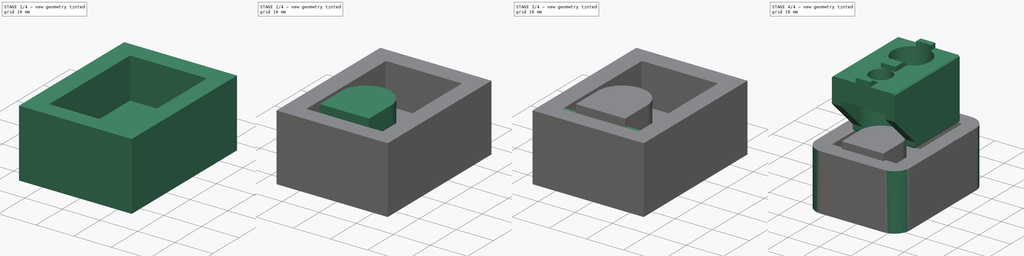
[diagram: build sequence overview — one tinted view per stage of 4, left to right]
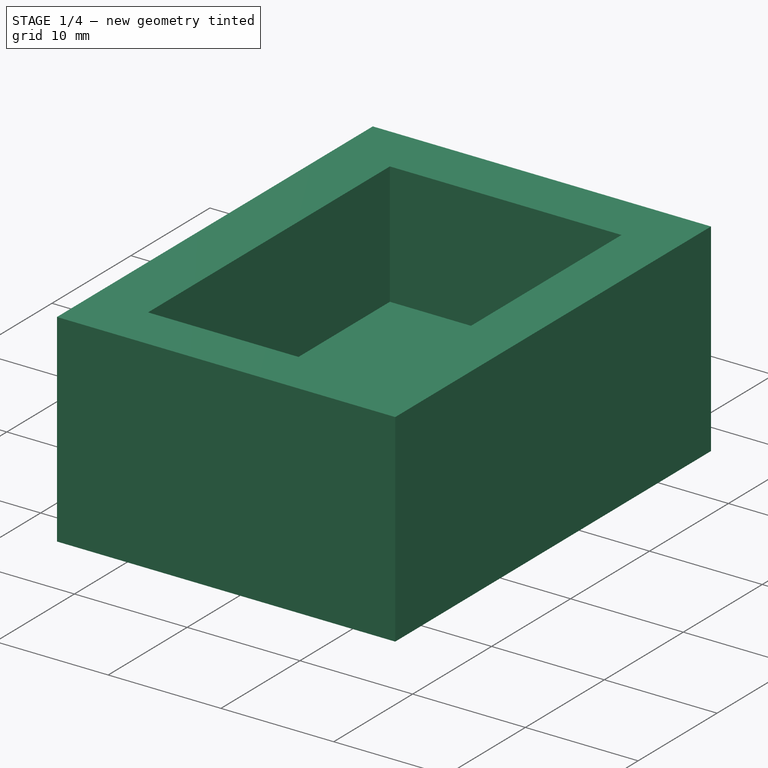
[diagram: stage 1 of 4 — iso view after this stage's code; geometry added in this stage tinted green]
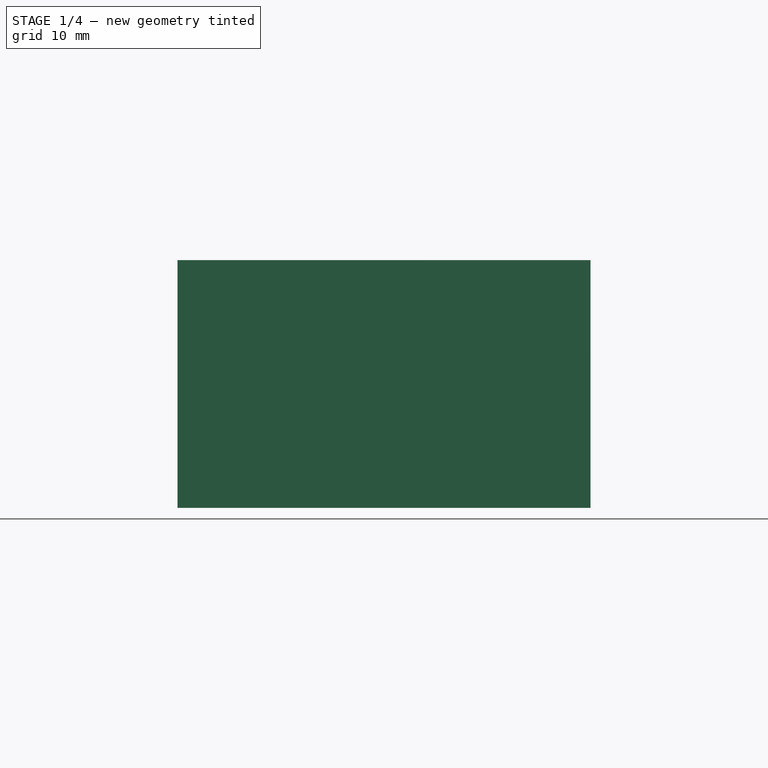
[diagram: stage 1 of 4 — front view after this stage's code; geometry added in this stage tinted green]
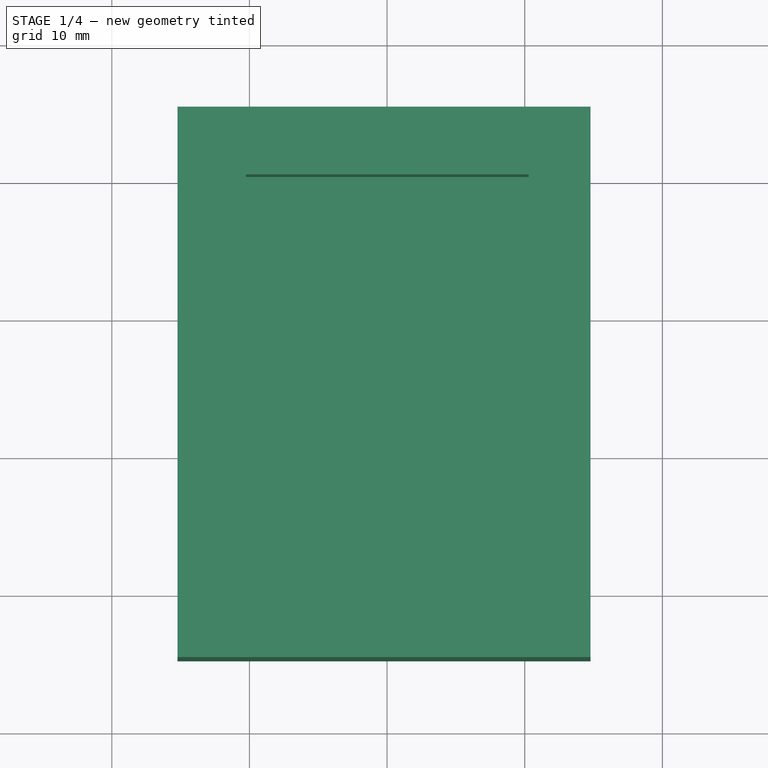
[diagram: stage 1 of 4 — top view after this stage's code; geometry added in this stage tinted green]
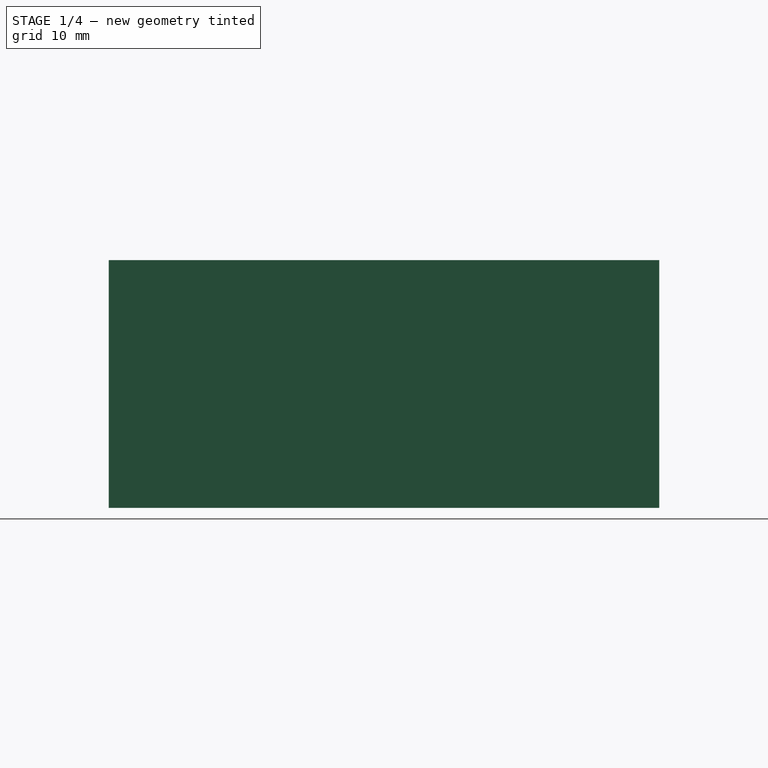
[diagram: stage 1 of 4 — right view after this stage's code; geometry added in this stage tinted green]
FCSTD DOCUMENT  (FreeCAD 0.17R9537 (Git))
Label: ymnt_chassis_insert
License: All rights reserved
LicenseURL: http://en.wikipedia.org/wiki/All_rights_reserved
objects: Sketcher::SketchObject×6, PartDesign::Pad×3, PartDesign::Pocket×3, PartDesign::Chamfer×2, Part::FeaturePython×1, PartDesign::Fillet×1, PartDesign::Body×1
note: 23 computed .brp shape members not serialized (recipe doc carries the construction recipe); baked Part::Feature solids carry a one-line shape summary decoded from their .brp

FEATURE [Sketcher::SketchObject] Sketch
  MapMode = 5
  Support = -> [XY_Plane]
  sketch-geometry (4):
    g0: LineSegment StartX=-5.2238 StartY=-34.7433 StartZ=0 EndX=24.7762 EndY=-34.7433 EndZ=0
    g1: LineSegment StartX=24.7762 StartY=-34.7433 StartZ=0 EndX=24.7762 EndY=5.25668 EndZ=0
    g2: LineSegment StartX=24.7762 StartY=5.25668 StartZ=0 EndX=-5.2238 EndY=5.25668 EndZ=0
    g3: LineSegment StartX=-5.2238 StartY=5.25668 StartZ=0 EndX=-5.2238 EndY=-34.7433 EndZ=0
  constraints (10):
    c: Coincident(g0,g1)
    c: Coincident(g1,g2)
    c: Coincident(g2,g3)
    c: Coincident(g3,g0)
    c: Horizontal(g0)
    c: Horizontal(g2)
    c: Vertical(g1)
    c: Vertical(g3)
    c: Distance(g2) = 30
    c: Distance(g3) = 40
FEATURE [PartDesign::Pad] Pad
  Length = 18
  Length2 = 100
  Profile = -> Sketch
  Type = 0
FEATURE [Sketcher::SketchObject] Sketch001
  MapMode = 5
  Placement = pos=(0,0,18) rot=(0,0,1;0rad)
  Support = -> [Pad]
  sketch-geometry (4):
    g0: LineSegment StartX=-0.25852 StartY=0.329742 StartZ=0 EndX=20.2855 EndY=0.329742 EndZ=0
    g1: LineSegment StartX=20.2855 StartY=0.329742 StartZ=0 EndX=20.2855 EndY=-30.3009 EndZ=0
    g2: LineSegment StartX=20.2855 StartY=-30.3009 StartZ=0 EndX=-0.25852 EndY=-30.3009 EndZ=0
    g3: LineSegment StartX=-0.25852 StartY=-30.3009 StartZ=0 EndX=-0.25852 EndY=0.329742 EndZ=0
  constraints (8):
    c: Coincident(g0,g1)
    c: Coincident(g1,g2)
    c: Coincident(g2,g3)
    c: Coincident(g3,g0)
    c: Horizontal(g0)
    c: Horizontal(g2)
    c: Vertical(g1)
    c: Vertical(g3)
FEATURE [PartDesign::Pocket] Pocket
  BaseFeature = -> Pad
  Length = 10.85
  Profile = -> Sketch001
  Type = 0
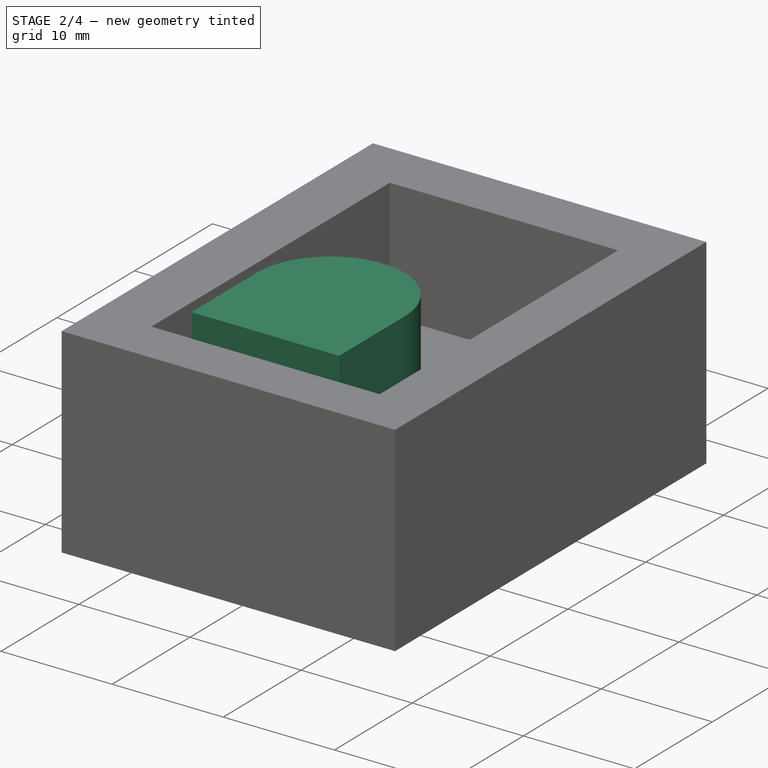
[diagram: stage 2 of 4 — iso view after this stage's code; geometry added in this stage tinted green]
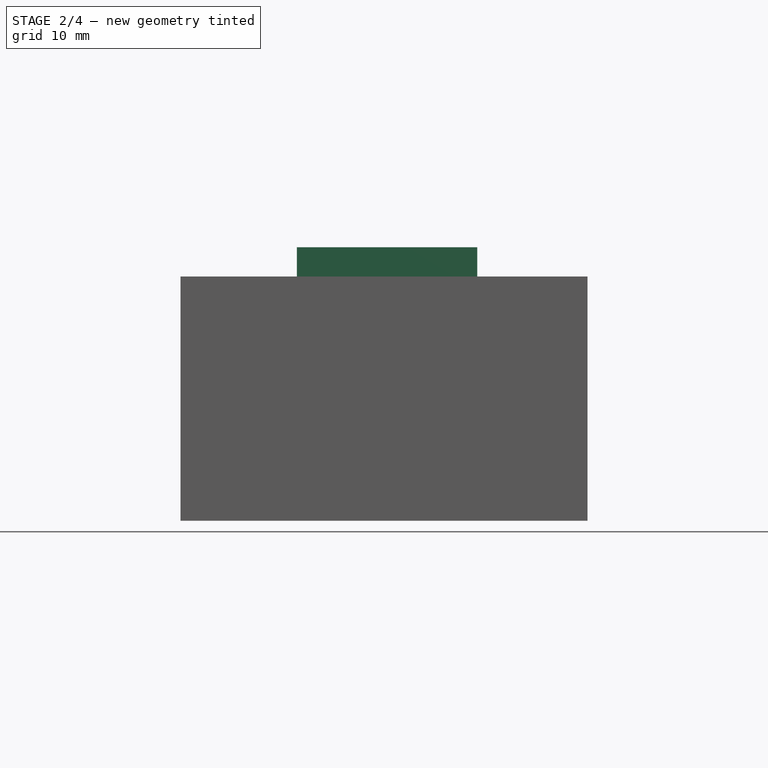
[diagram: stage 2 of 4 — front view after this stage's code; geometry added in this stage tinted green]
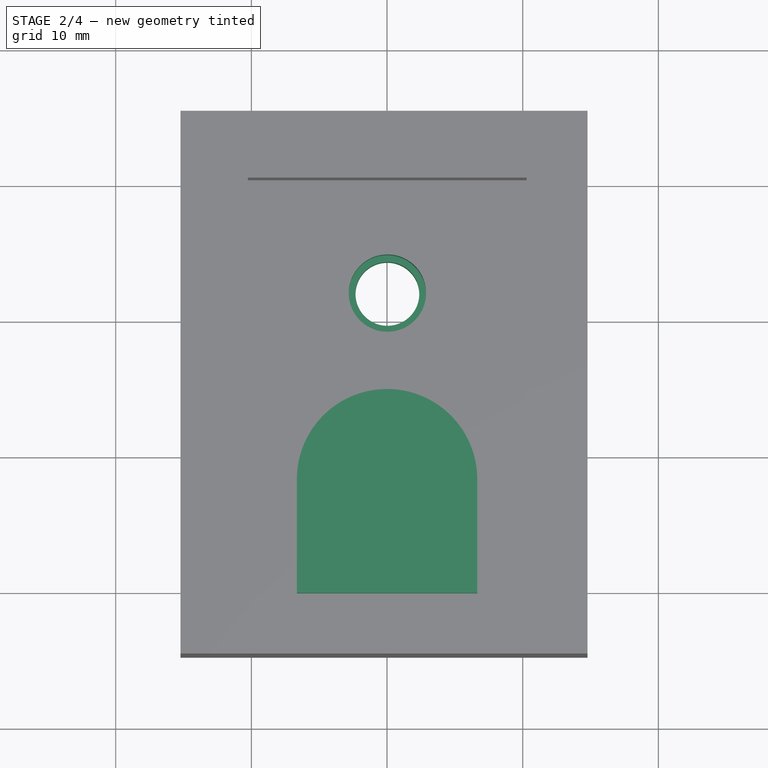
[diagram: stage 2 of 4 — top view after this stage's code; geometry added in this stage tinted green]
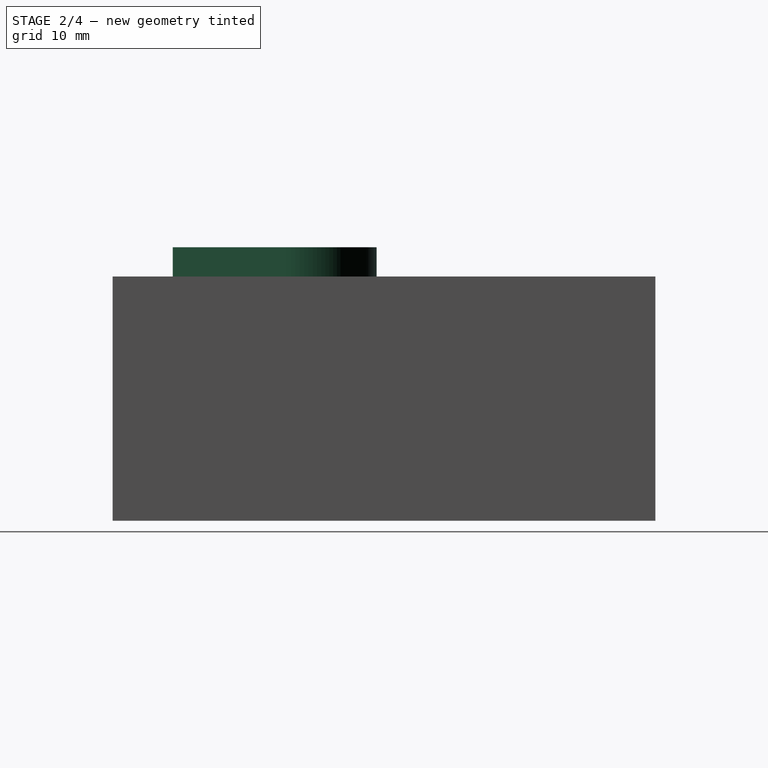
[diagram: stage 2 of 4 — right view after this stage's code; geometry added in this stage tinted green]
FEATURE [Sketcher::SketchObject] Sketch002
  MapMode = 5
  Placement = pos=(0,0,7.15) rot=(0,0,1;0rad)
  Support = -> [Pocket]
  sketch-geometry (4):
    g0: LineSegment StartX=3.35443 StartY=-30.3141 StartZ=0 EndX=16.6489 EndY=-30.3141 EndZ=0
    g1: LineSegment StartX=3.35443 StartY=-22.1077 StartZ=0 EndX=3.35443 EndY=-30.3141 EndZ=0
    g2: ArcOfCircle CenterX=10.0005 CenterY=-21.9352 CenterZ=0 NormalX=0 NormalY=0 NormalZ=1 Radius=6.64835 StartAngle=2.33366e-06 EndAngle=3.16754
    g3: LineSegment StartX=16.6489 StartY=-30.3141 StartZ=0 EndX=16.6489 EndY=-21.9352 EndZ=0
  constraints (9):
    c: Coincident(g1,g0)
    c: Horizontal(g0)
    c: Vertical(g1)
    c: PointOnObject(g3,g0)
    c: Vertical(g3)
    c: Coincident(g2,g3)
    c: Coincident(g2,g1)
    c: Coincident(g0,g3)
    c: Coincident(g2,g3)
FEATURE [PartDesign::Pad] Pad001
  BaseFeature = -> Pocket
  Length = 13
  Length2 = 100
  Profile = -> Sketch002
  Type = 0
FEATURE [Sketcher::SketchObject] Sketch003
  MapMode = 5
  Placement = pos=(0,0,7.15) rot=(0,0,1;0rad)
  Support = -> [Pad001]
  sketch-geometry (1):
    g0: Circle CenterX=10.0264 CenterY=-7.99025 CenterZ=0 NormalX=0 NormalY=0 NormalZ=1 Radius=2.85
  constraints (1):
    c: Radius(g0) = 2.85
FEATURE [PartDesign::Pocket] Pocket001
  BaseFeature = -> Pad001
  Length = 3.5
  Profile = -> Sketch003
  Type = 0
FEATURE [Sketcher::SketchObject] Sketch004
  ExternalGeometry = -> [Pocket001]
  MapMode = 5
  Placement = pos=(0,0,7.15) rot=(0,0,1;0rad)
  Support = -> [Pocket001]
  sketch-geometry (1):
    g0: Circle CenterX=10.0264 CenterY=-7.99025 CenterZ=0 NormalX=0 NormalY=0 NormalZ=1 Radius=2.35
  constraints (2):
    c: Coincident(g0,g-3)
    c: Radius(g0) = 2.35
FEATURE [PartDesign::Pocket] Pocket002
  BaseFeature = -> Pocket001
  Length = 5
  Profile = -> Sketch004
  Type = 1
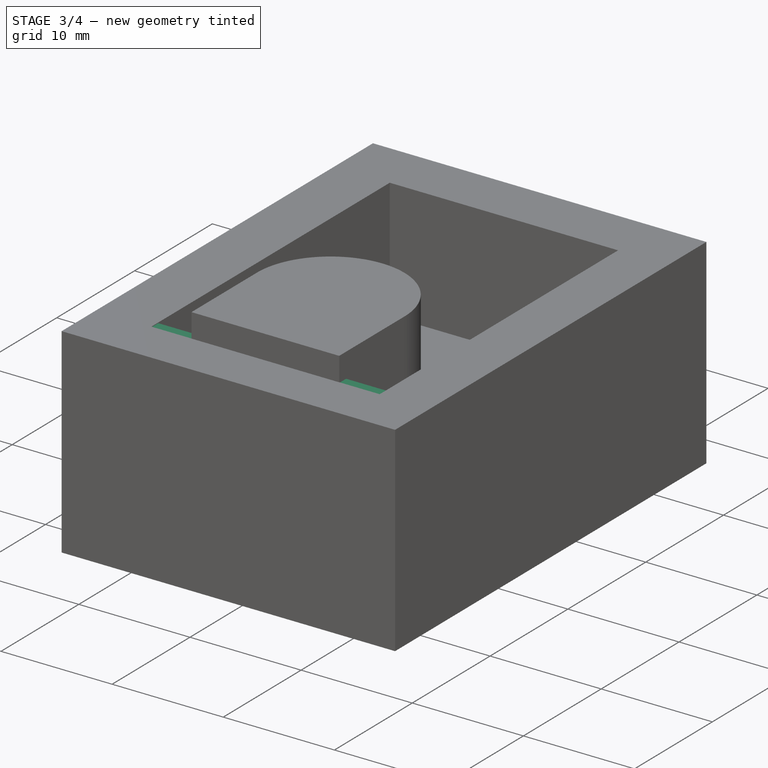
[diagram: stage 3 of 4 — iso view after this stage's code; geometry added in this stage tinted green]
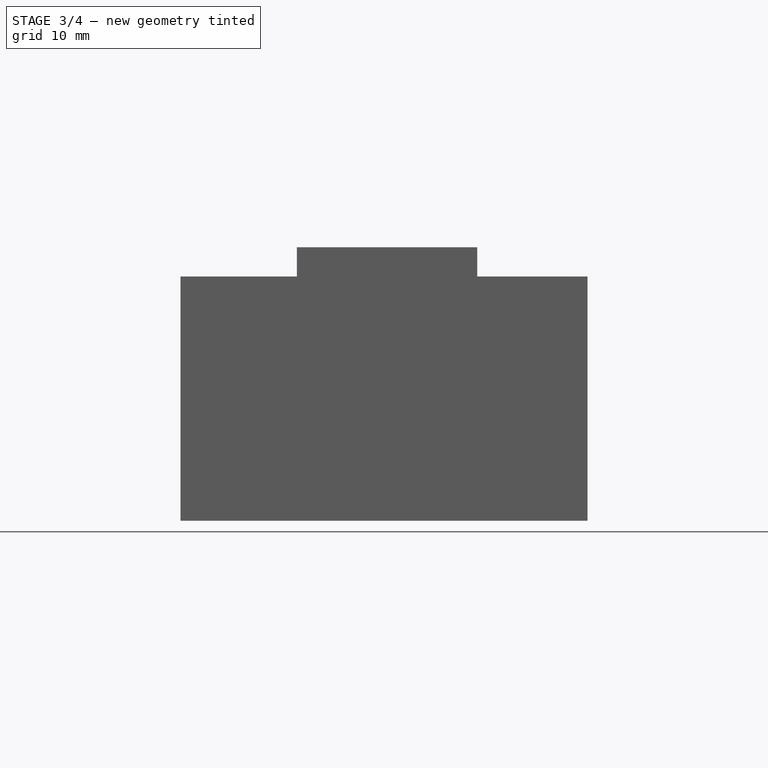
[diagram: stage 3 of 4 — front view after this stage's code; geometry added in this stage tinted green]
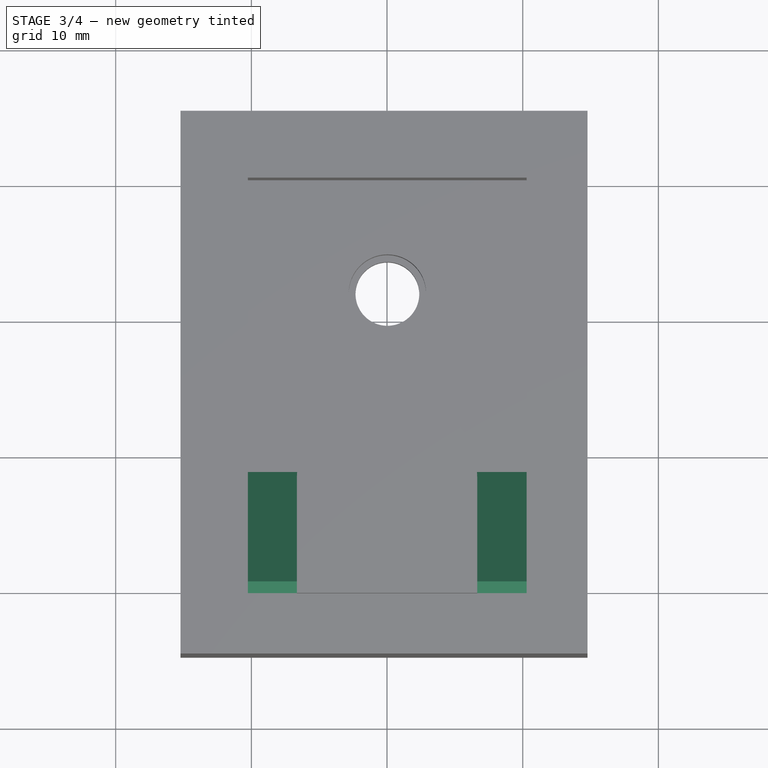
[diagram: stage 3 of 4 — top view after this stage's code; geometry added in this stage tinted green]
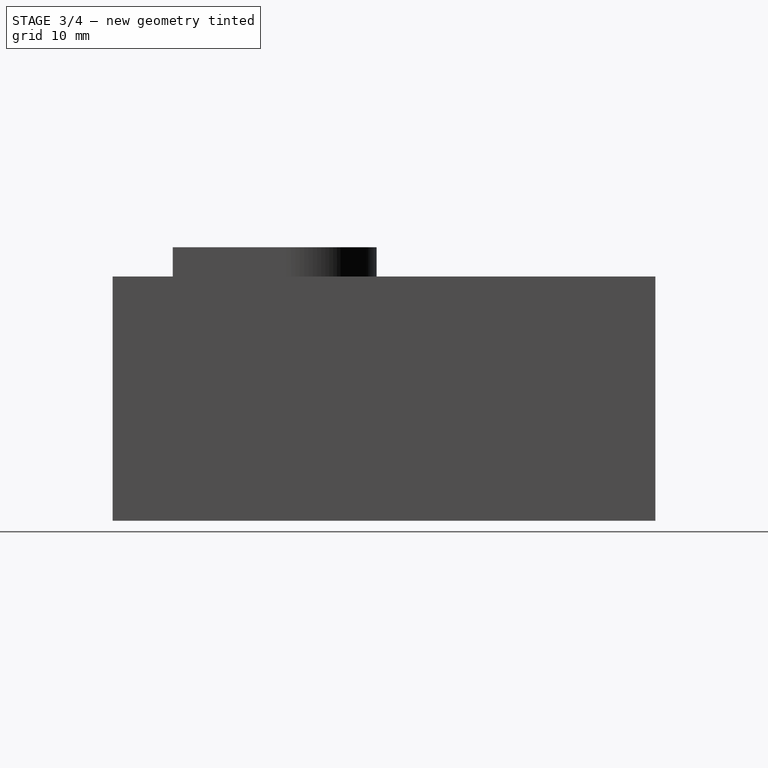
[diagram: stage 3 of 4 — right view after this stage's code; geometry added in this stage tinted green]
FEATURE [Sketcher::SketchObject] Sketch005
  MapMode = 5
  Placement = pos=(0,0,7.15) rot=(0,0,1;0rad)
  Support = -> [Pocket002]
  sketch-geometry (4):
    g0: LineSegment StartX=20.5305 StartY=-21.228 StartZ=0 EndX=-0.419185 EndY=-21.228 EndZ=0
    g1: LineSegment StartX=-0.419185 StartY=-21.228 StartZ=0 EndX=-0.419185 EndY=-30.539 EndZ=0
    g2: LineSegment StartX=-0.419185 StartY=-30.539 StartZ=0 EndX=20.5305 EndY=-30.539 EndZ=0
    g3: LineSegment StartX=20.5305 StartY=-30.539 StartZ=0 EndX=20.5305 EndY=-21.228 EndZ=0
  constraints (8):
    c: Coincident(g0,g1)
    c: Coincident(g1,g2)
    c: Coincident(g2,g3)
    c: Coincident(g3,g0)
    c: Horizontal(g0)
    c: Horizontal(g2)
    c: Vertical(g1)
    c: Vertical(g3)
FEATURE [PartDesign::Pad] Pad002
  BaseFeature = -> Pocket002
  Length = 10.8
  Length2 = 100
  Profile = -> Sketch005
  Type = 0
FEATURE [PartDesign::Chamfer] Chamfer
  Base = -> Pad002 [Edge56,Edge50]
  BaseFeature = -> Pad002
  Size = 8.2
FEATURE [PartDesign::Chamfer] Chamfer001
  Base = -> Chamfer [Edge64]
  BaseFeature = -> Chamfer
  Size = 1
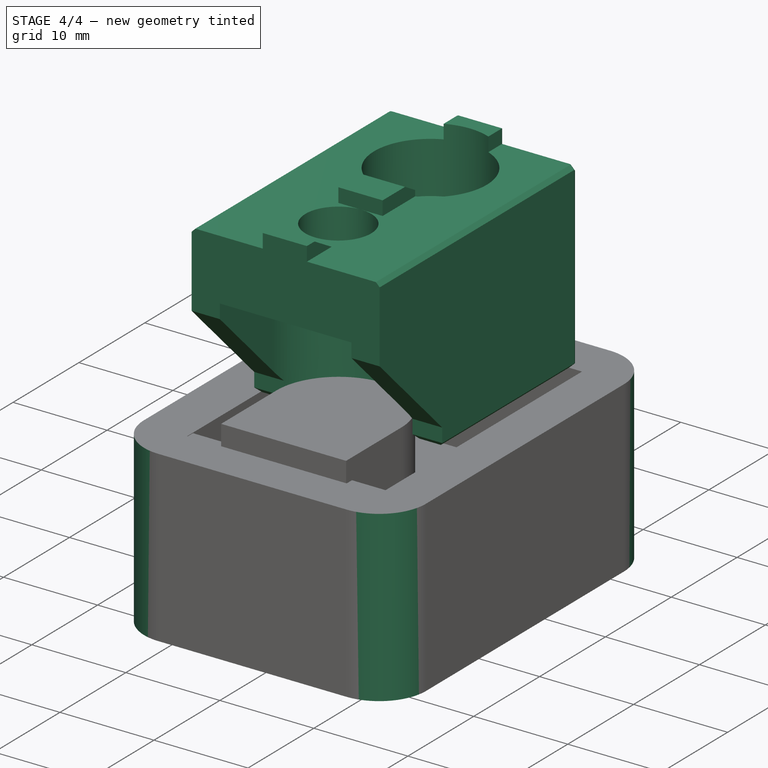
[diagram: stage 4 of 4 — iso view after this stage's code; geometry added in this stage tinted green]
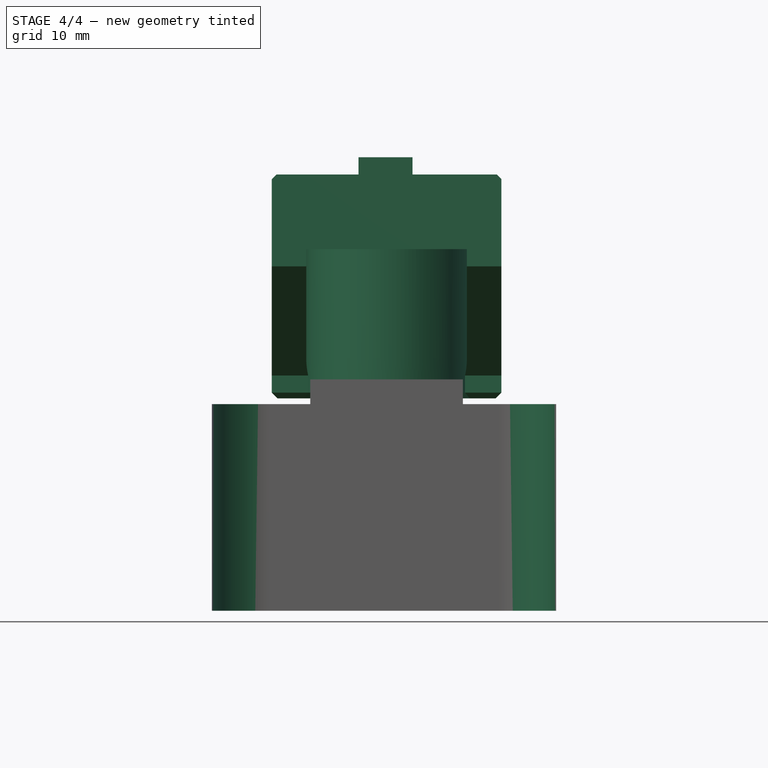
[diagram: stage 4 of 4 — front view after this stage's code; geometry added in this stage tinted green]
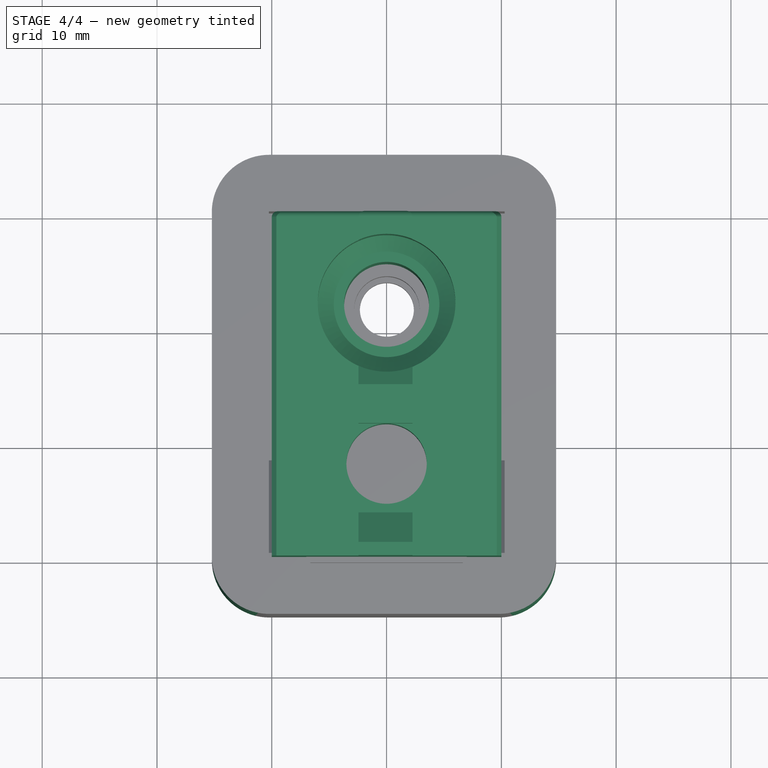
[diagram: stage 4 of 4 — top view after this stage's code; geometry added in this stage tinted green]
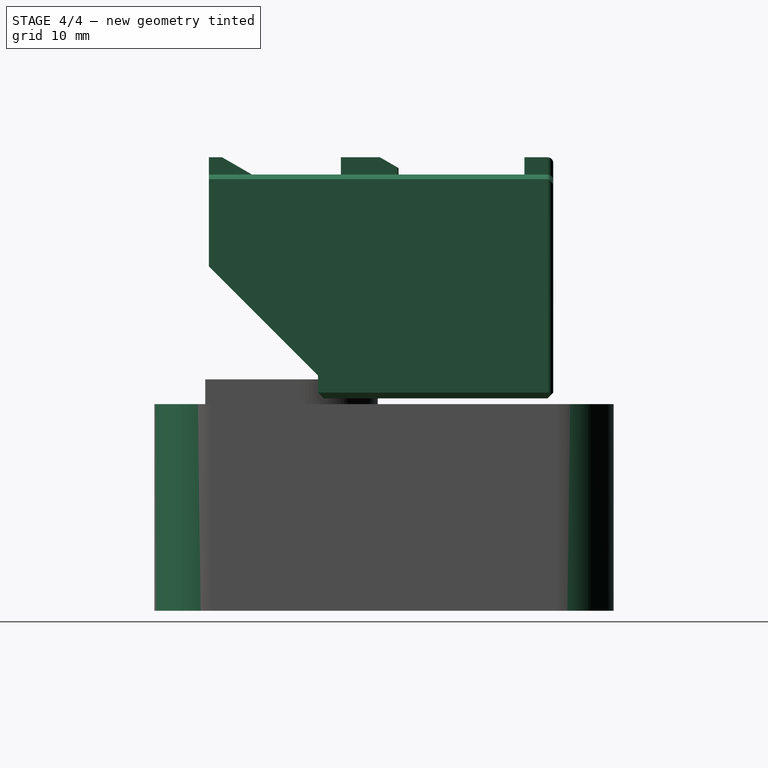
[diagram: stage 4 of 4 — right view after this stage's code; geometry added in this stage tinted green]
FEATURE [Part::FeaturePython] bed_mount_chassis_v3_3_A_01  # a2plus imported part (geometry in sourceFile) (typed FeaturePython)
  Placement = pos=(0,0,38) rot=(0.57735,0.57735,-0.57735;2.0944rad)
  fixedPosition = true
  sourceFile = <userpath>/taz-olive/production_parts/printed_parts/bed_mount_chassis/bed_mount_chassis_v3.3_A.FCStd
  timeLastImport = 1.47379e+09
  updateColors = true
FEATURE [PartDesign::Fillet] Fillet
  Base = -> Chamfer001 [Edge9,Edge13,Edge8,Edge11]
  BaseFeature = -> Chamfer001
  Radius = 5
FEATURE [PartDesign::Body] Body
  Model = -> [Sketch,Pad,Sketch001,Pocket,Sketch002,Pad001,Sketch003,Pocket001,Sketch004,Pocket002,Sketch005,Pad002,Chamfer,Chamfer001,Fillet]
  Origin = -> BodyOrigin
  Tip = -> Fillet
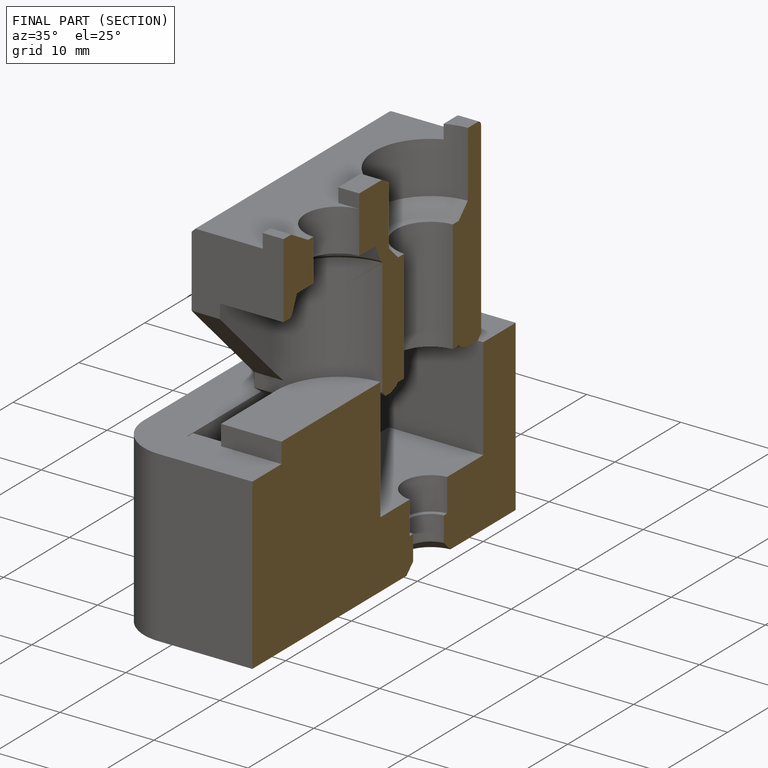
[diagram: finished part — half-section view (interior)]
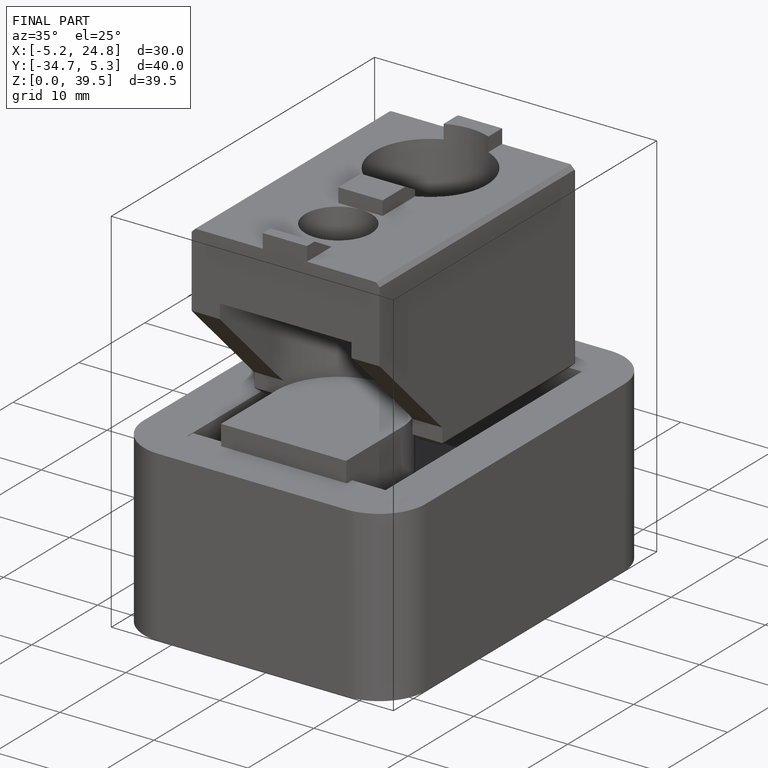
[diagram: finished part — iso view with bounding-box wireframe]
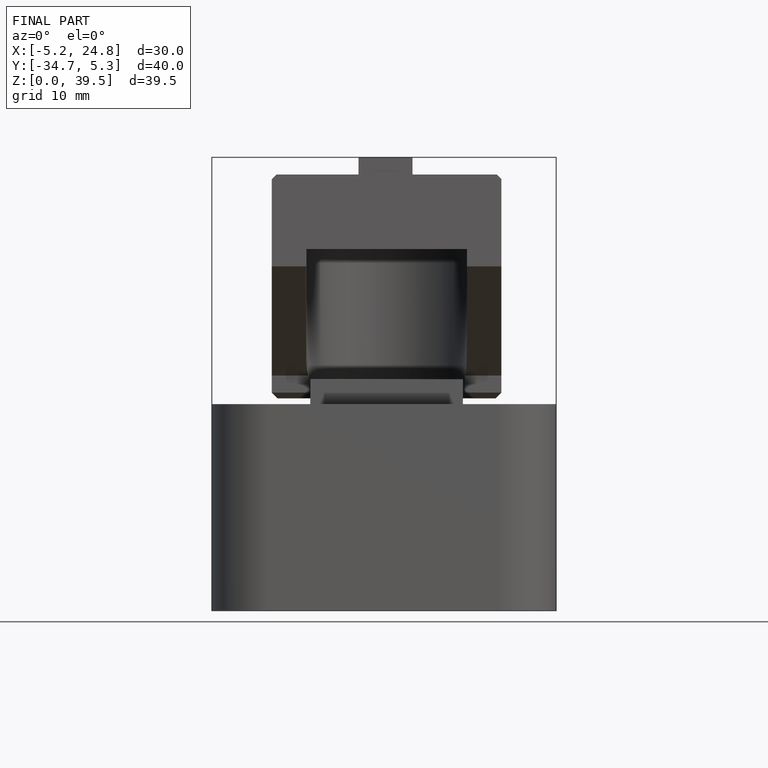
[diagram: finished part — front view with bounding-box wireframe]
